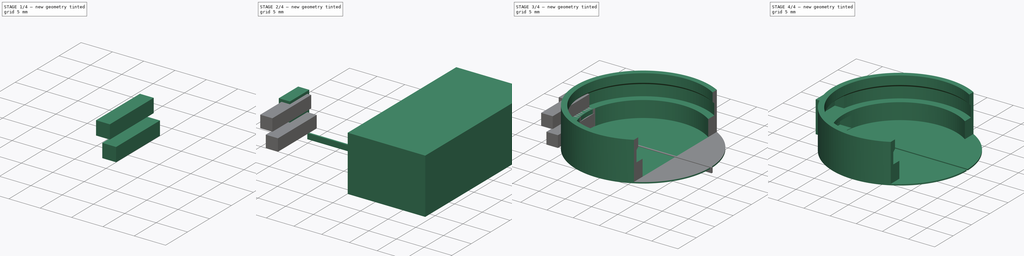
[diagram: build sequence overview — one tinted view per stage of 4, left to right]
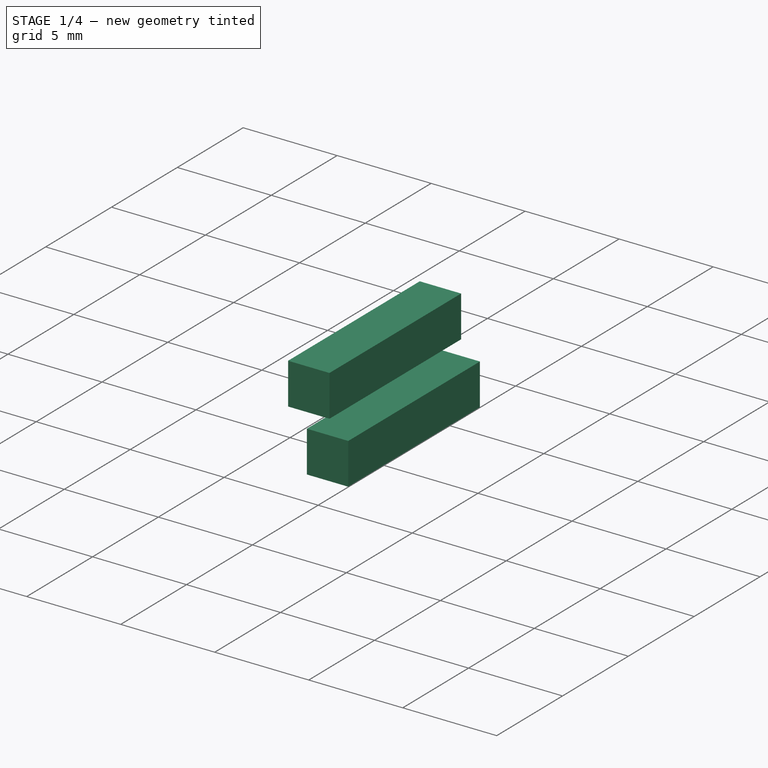
[diagram: stage 1 of 4 — iso view after this stage's code; geometry added in this stage tinted green]
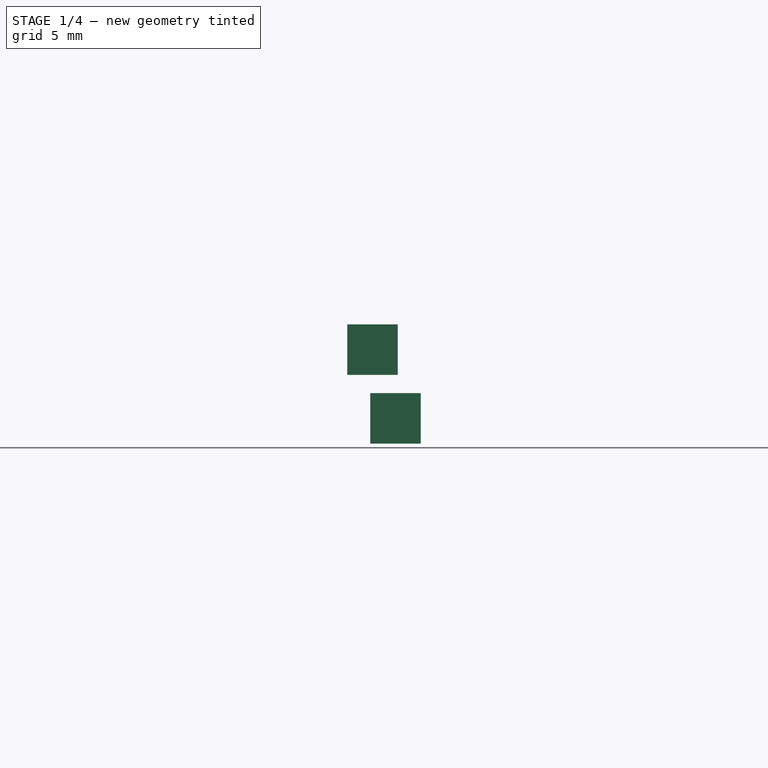
[diagram: stage 1 of 4 — front view after this stage's code; geometry added in this stage tinted green]
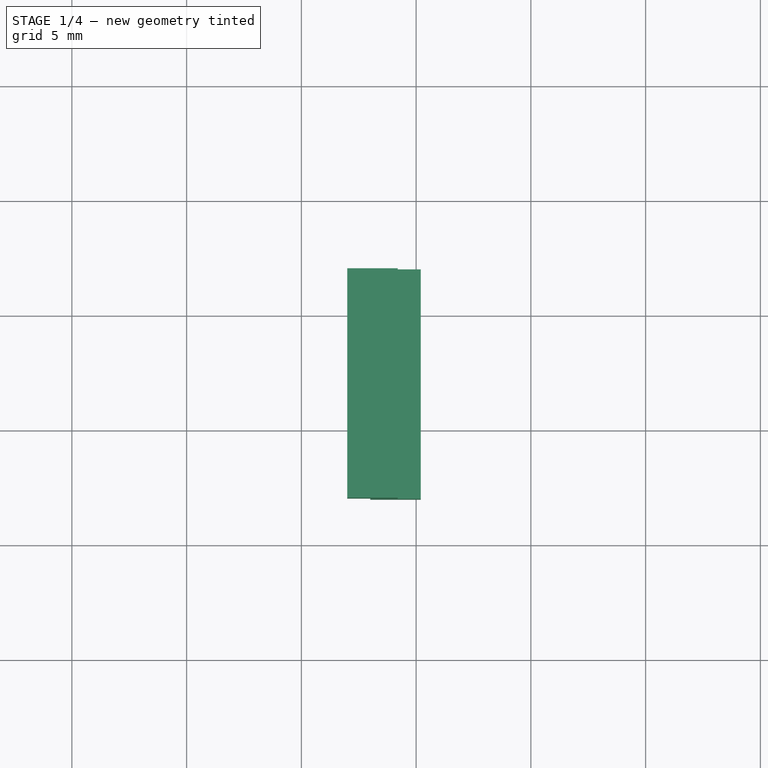
[diagram: stage 1 of 4 — top view after this stage's code; geometry added in this stage tinted green]
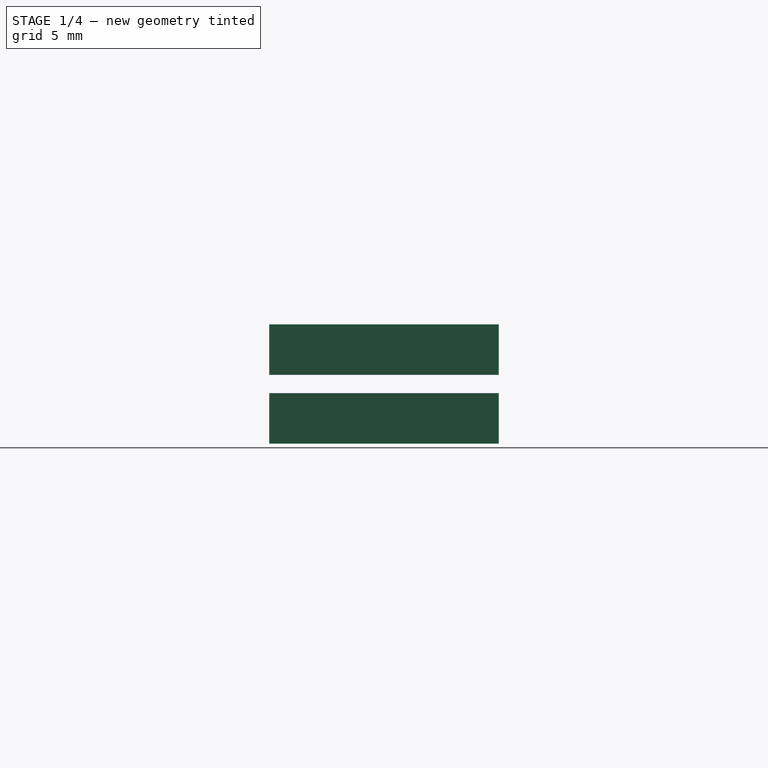
[diagram: stage 1 of 4 — right view after this stage's code; geometry added in this stage tinted green]
FCSTD DOCUMENT  (FreeCAD 0.17R13522 (Git))
Label: LIR2477_battery_holder
License: All rights reserved
LicenseURL: http://en.wikipedia.org/wiki/All_rights_reserved
objects: Part::Box×5, Part::Cut×3, Part::MultiFuse×2, Sketcher::SketchObject×1, Part::Part2DObjectPython×1, PartDesign::FeatureBase×1, PartDesign::Revolution×1, PartDesign::Body×1
note: 16 computed .brp shape members not serialized (recipe doc carries the construction recipe); baked Part::Feature solids carry a one-line shape summary decoded from their .brp

FEATURE [Part::Box] Box003  label="Terminal_hole_1"
  AttacherType = Attacher::AttachEngine3D
  Height = 2.2
  Length = 2.2
  Placement = pos=(-3,-8,0) rot=(0,0,1;0rad)
  Width = 10
FEATURE [Part::Box] Box004  label="Terminal_hole_002"
  AttacherType = Attacher::AttachEngine3D
  Height = 2.2
  Length = 2.2
  Placement = pos=(-2,-8,-3) rot=(0,0,1;0rad)
  Width = 10
FEATURE [Part::MultiFuse] Fusion001  label="Terminal_holes"
  Shapes = -> [Box003,Box004]
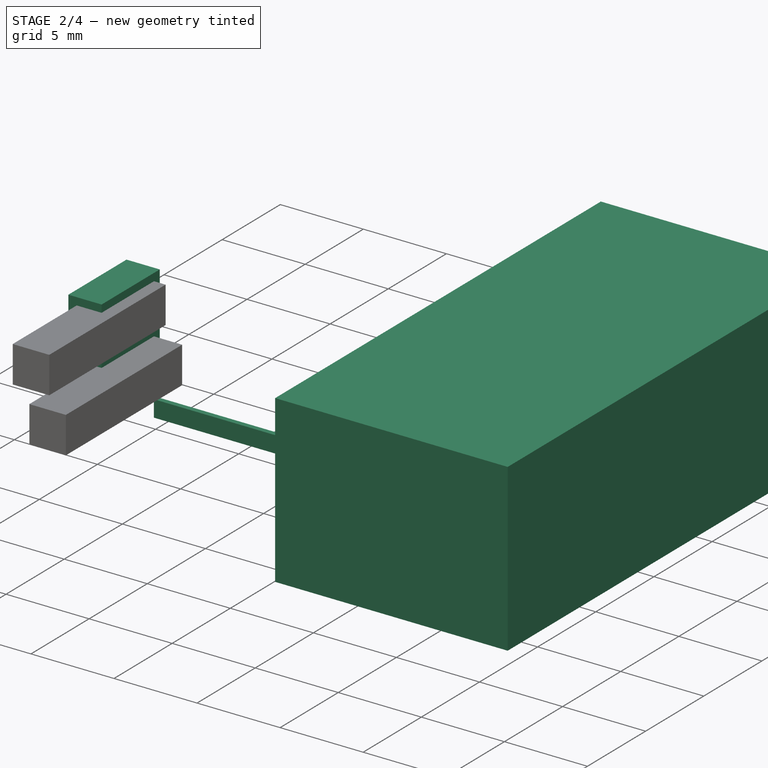
[diagram: stage 2 of 4 — iso view after this stage's code; geometry added in this stage tinted green]
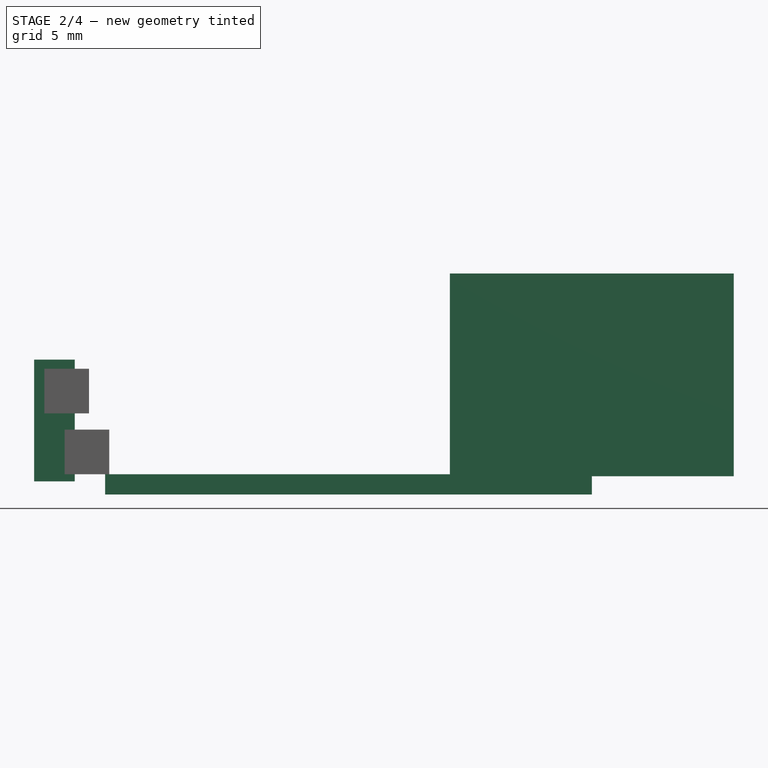
[diagram: stage 2 of 4 — front view after this stage's code; geometry added in this stage tinted green]
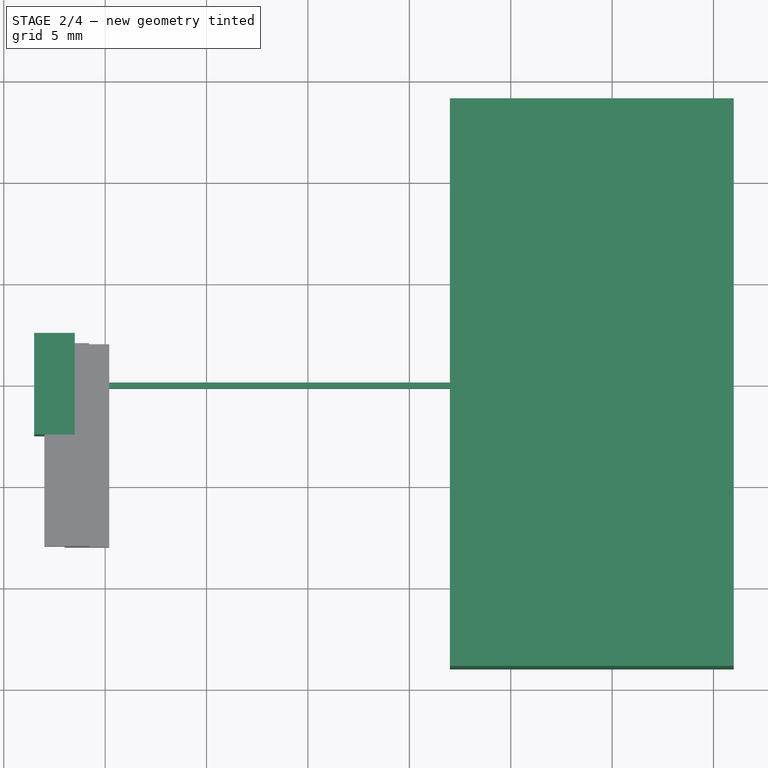
[diagram: stage 2 of 4 — top view after this stage's code; geometry added in this stage tinted green]
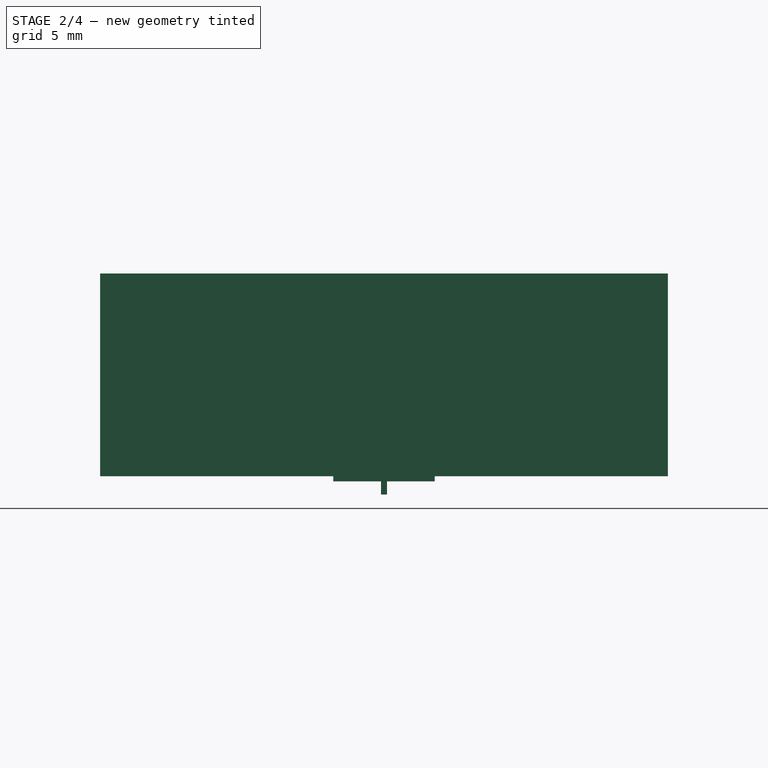
[diagram: stage 2 of 4 — right view after this stage's code; geometry added in this stage tinted green]
FEATURE [PartDesign::Body] Body
  BaseFeature = -> DWire
  Group = -> [BaseFeature,Revolution]
  Origin = -> Origin
  Tip = -> Revolution
FEATURE [Part::Box] Box  label="Cubo"
  AttacherType = Attacher::AttachEngine3D
  Height = 10
  Length = 14
  Placement = pos=(17,-14,-3.1) rot=(0,0,1;0rad)
  Width = 28
FEATURE [Part::Box] Box001  label="Cubo001"
  AttacherType = Attacher::AttachEngine3D
  Height = 1
  Length = 24
  Placement = pos=(0,-0.15,-4) rot=(0,0,1;0rad)
  Width = 0.3
FEATURE [Part::Box] Box002  label="Cubo002"
  AttacherType = Attacher::AttachEngine3D
  Height = 6
  Length = 2
  Placement = pos=(-3.5,-2.5,-3.35) rot=(0,0,1;0rad)
  Width = 5
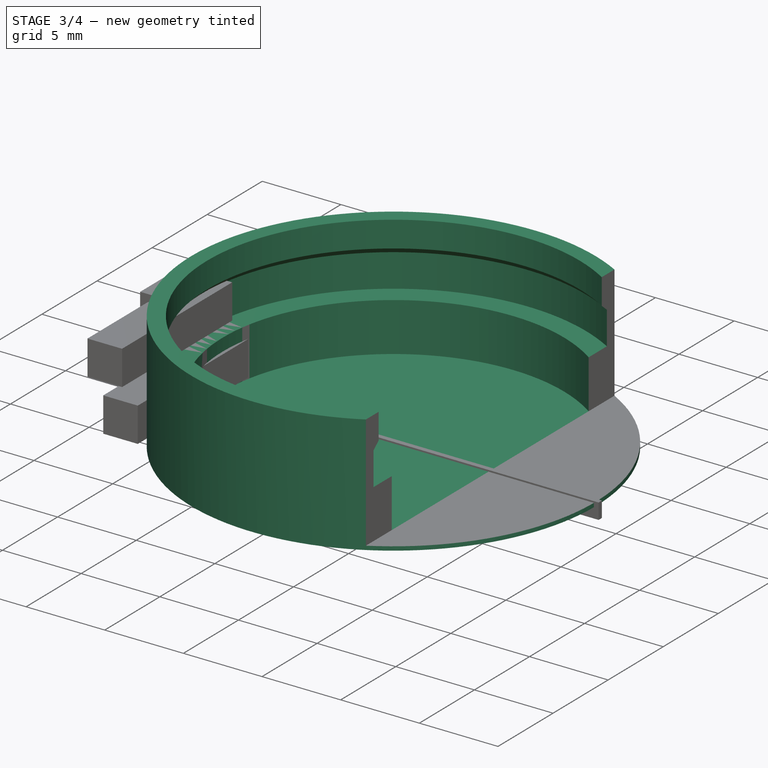
[diagram: stage 3 of 4 — iso view after this stage's code; geometry added in this stage tinted green]
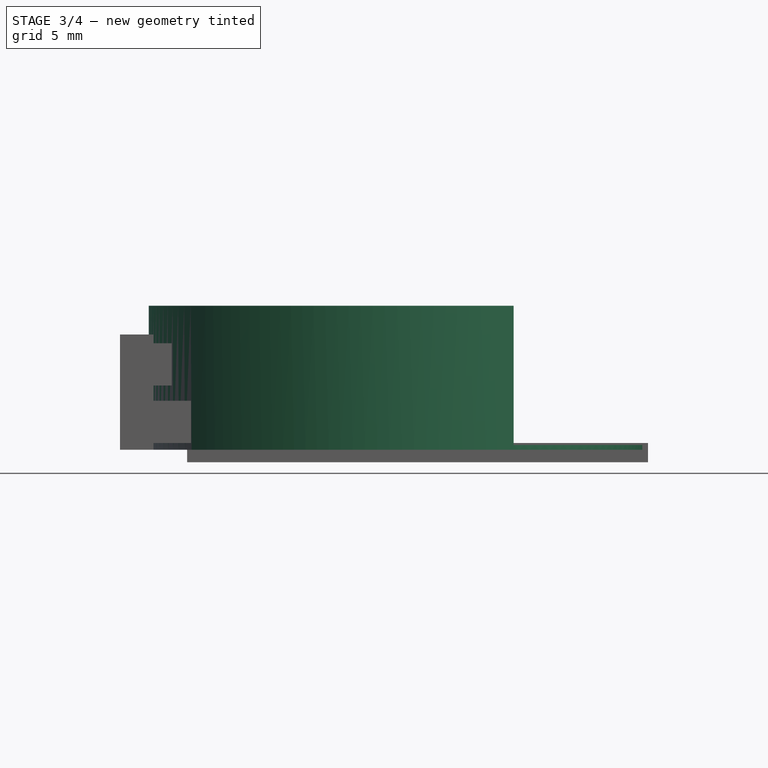
[diagram: stage 3 of 4 — front view after this stage's code; geometry added in this stage tinted green]
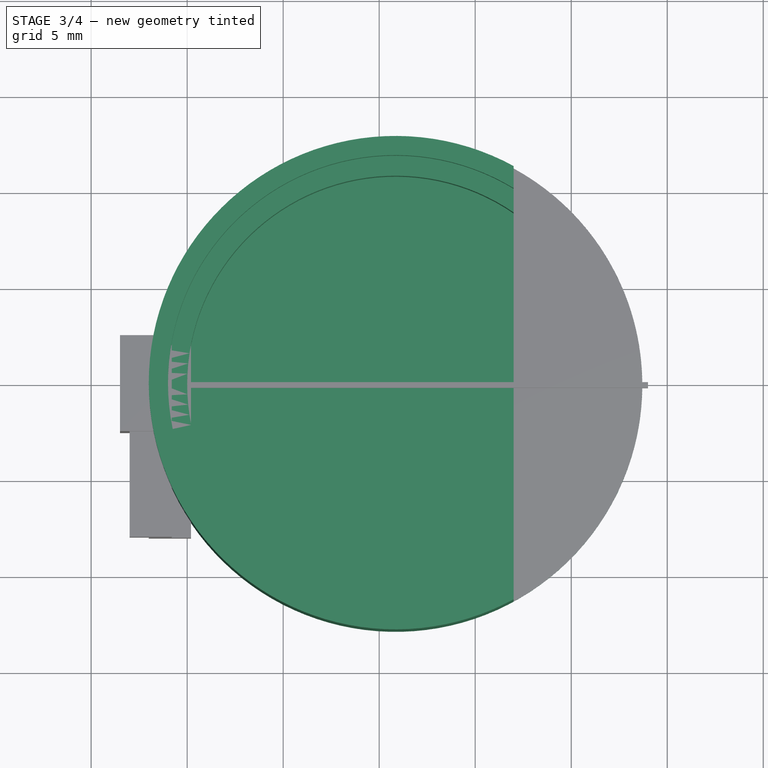
[diagram: stage 3 of 4 — top view after this stage's code; geometry added in this stage tinted green]
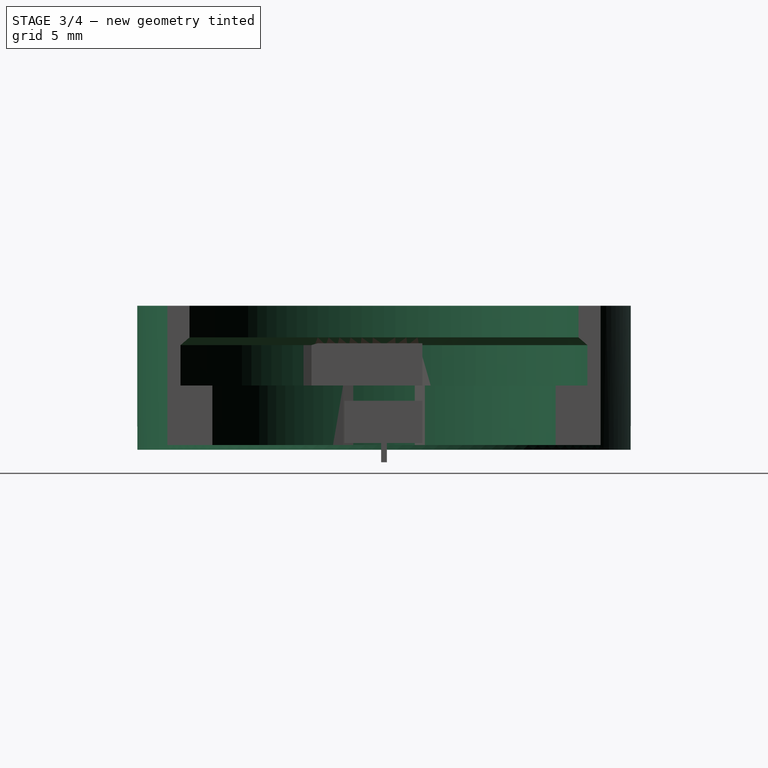
[diagram: stage 3 of 4 — right view after this stage's code; geometry added in this stage tinted green]
FEATURE [Sketcher::SketchObject] Sketch
  Placement = pos=(0,0,0) rot=(-1,0,0;4.71239rad)
  sketch-geometry (11):
    g0: LineSegment StartX=-1.4 StartY=2.1 StartZ=0 EndX=-1.4 EndY=0 EndZ=0
    g1: LineSegment StartX=-1.4 StartY=0 StartZ=0 EndX=0 EndY=0 EndZ=0
    g2: LineSegment StartX=-1 StartY=4.15 StartZ=0 EndX=-2 EndY=4.15 EndZ=0
    g3: LineSegment StartX=-2 StartY=4.15 StartZ=0 EndX=-2 EndY=-3.35 EndZ=0
    g4: LineSegment StartX=-2 StartY=-3.35 StartZ=0 EndX=0 EndY=-3.35 EndZ=0
    g5: LineSegment StartX=0 StartY=-3.35 StartZ=0 EndX=10.85 EndY=-3.35 EndZ=0
    g6: LineSegment StartX=10.85 StartY=-3.35 StartZ=0 EndX=10.85 EndY=-3.1 EndZ=0
    g7: LineSegment StartX=10.85 StartY=-3.1 StartZ=0 EndX=0 EndY=-3.1 EndZ=0
    g8: LineSegment StartX=-1 StartY=4.15 StartZ=0 EndX=-1 EndY=2.5 EndZ=0
    g9: LineSegment StartX=0 StartY=0 StartZ=0 EndX=0 EndY=-3.1 EndZ=0
    g10: LineSegment StartX=-1 StartY=2.5 StartZ=0 EndX=-1.4 EndY=2.1 EndZ=0
  constraints (32):
    c: Vertical(g0)
    c: Coincident(g1,g0)
    c: Horizontal(g1)
    c: Coincident(g1,g-1)
    c: DistanceY(g8,g2) = 1.65
    c: DistanceY(g4,g1) = 3.35
    c: Horizontal(g2)
    c: Coincident(g3,g2)
    c: Vertical(g3)
    c: Coincident(g4,g3)
    c: Horizontal(g4)
    c: DistanceY(g-1,g8) = 2.5
    c: PointOnObject(g4,g-2)
    c: Coincident(g4,g5)
    c: Horizontal(g5)
    c: Coincident(g5,g6)
    c: Vertical(g6)
    c: Coincident(g6,g7)
    c: Horizontal(g7)
    c: PointOnObject(g7,g-2)
    c: Coincident(g9,g-1)
    c: Coincident(g9,g7)
    c: Coincident(g2,g8)
    c: Coincident(g0,g10)
    c: Angle(g-1,g10) = 0.785398
    c: DistanceX(g1,g1) = 1.4
    c: DistanceX(g2,g8) = 1
    c: Coincident(g8,g10)
    c: Vertical(g8)
    c: DistanceX(g3,g0) = 0.6
    c: DistanceX(g0,g5) = 12.25
    c: DistanceY(g6,g6) = 0.25
FEATURE [Part::Part2DObjectPython] DWire  # Draft 2D object (typed FeaturePython)
  ChamferSize = 0
  Closed = true
  End = (-2,0,4.15)
  FilletRadius = 0
  Length = 41.2657
  MakeFace = true
  Points = (11) [(-2,-7.43849e-16,-3.35),(0,-7.43849e-16,-3.35),(10.85,-7.43849e-16,-3.35),(10.85,-6.88338e-16,-3.1),(0,-6.88338e-16,-3.1),(1.11022e-16,0,0),+5 more]
  Start = (-2,0,-3.35)
  Subdivisions = 0
FEATURE [PartDesign::FeatureBase] BaseFeature
  BaseFeature = -> DWire
FEATURE [PartDesign::Revolution] Revolution
  Angle = 360
  Axis = (0,0,1)
  Base = (10.85,0,-3.35)
  BaseFeature = -> BaseFeature
  Profile = -> BaseFeature [Face1]
  ReferenceAxis = -> BaseFeature [Edge3]
FEATURE [Part::Cut] Cut
  Base = -> Body
  Tool = -> Box
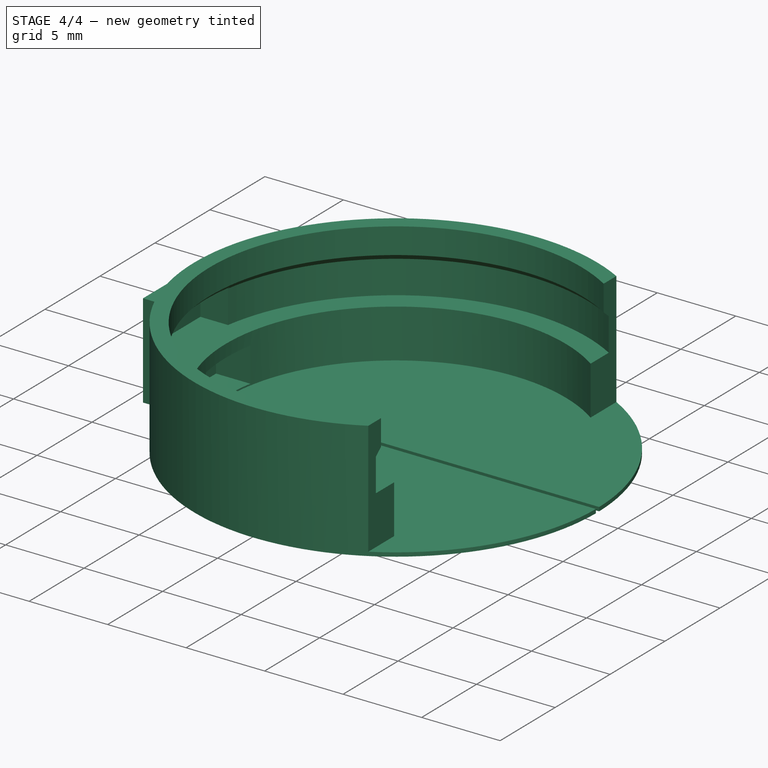
[diagram: stage 4 of 4 — iso view after this stage's code; geometry added in this stage tinted green]
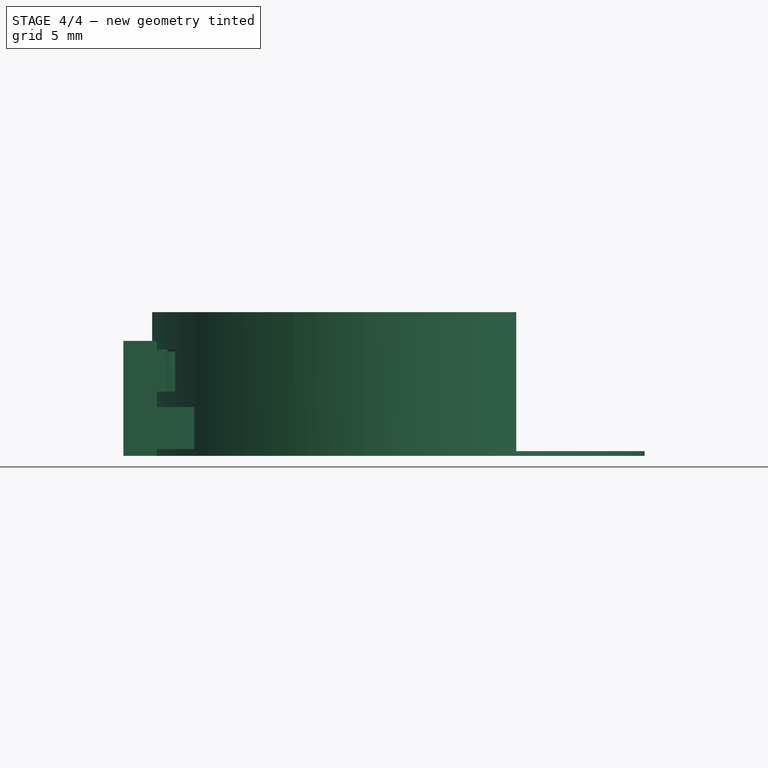
[diagram: stage 4 of 4 — front view after this stage's code; geometry added in this stage tinted green]
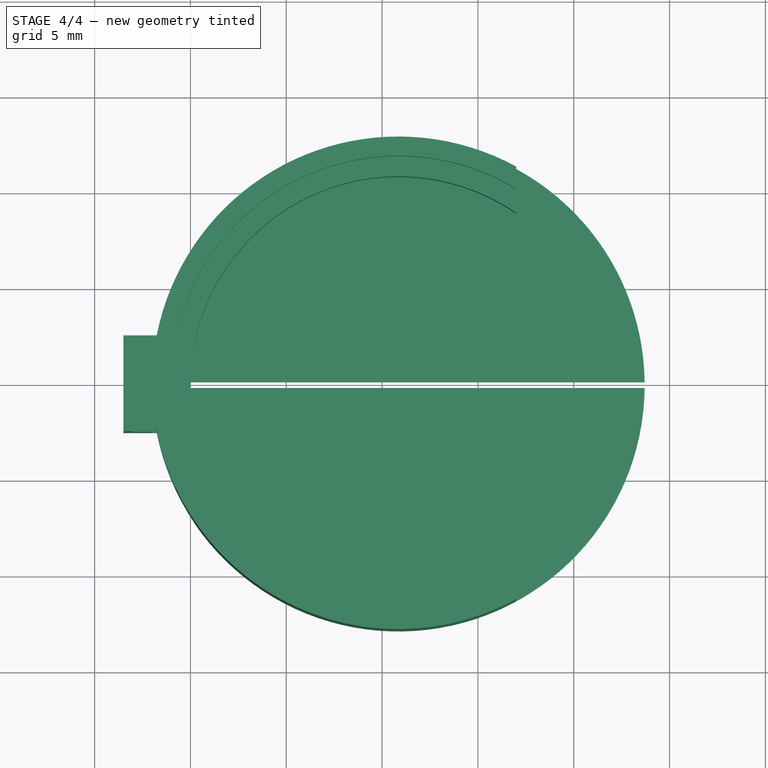
[diagram: stage 4 of 4 — top view after this stage's code; geometry added in this stage tinted green]
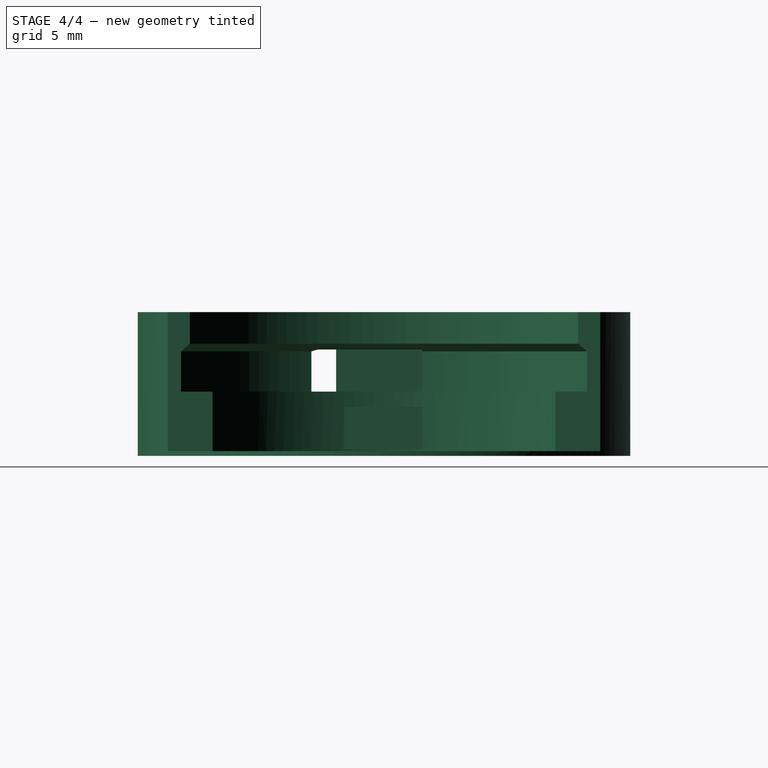
[diagram: stage 4 of 4 — right view after this stage's code; geometry added in this stage tinted green]
FEATURE [Part::Cut] Cut001
  Base = -> Cut
  Tool = -> Box001
FEATURE [Part::MultiFuse] Fusion  label="Holder"
  Shapes = -> [Cut001,Box002]
FEATURE [Part::Cut] Cut002  label="Holder_drilled"
  Base = -> Fusion
  Tool = -> Fusion001
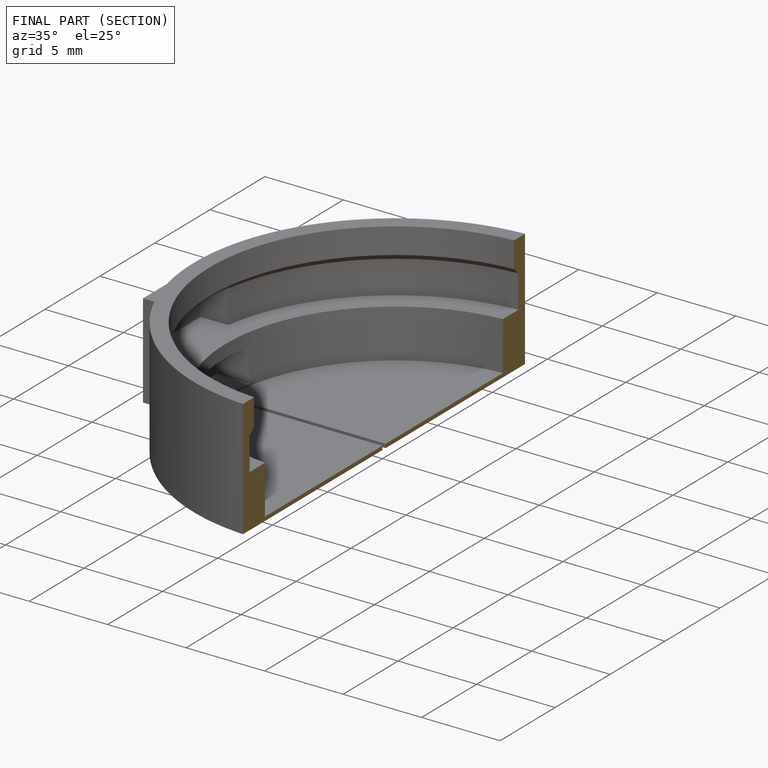
[diagram: finished part — half-section view (interior)]
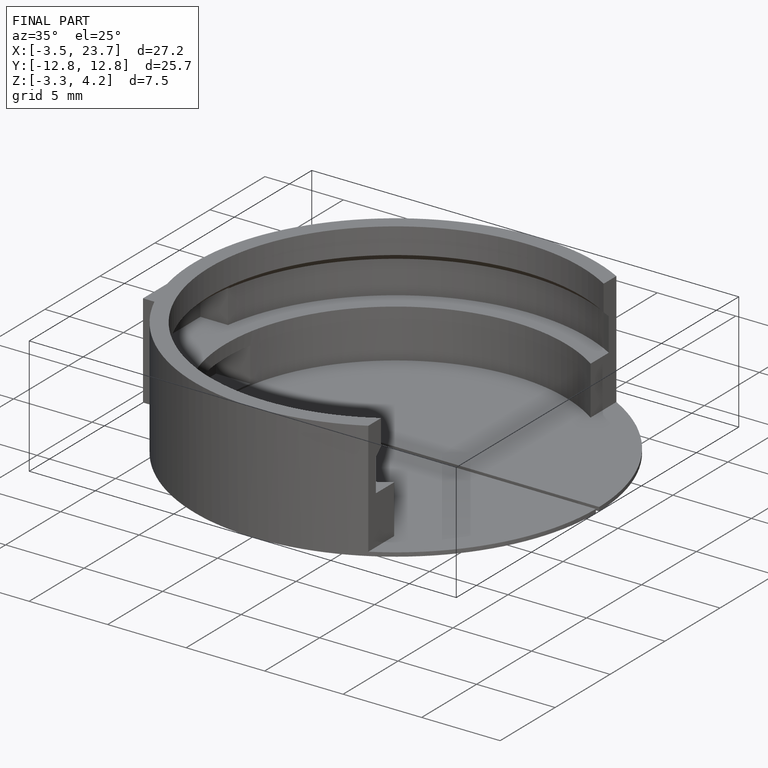
[diagram: finished part — iso view with bounding-box wireframe]
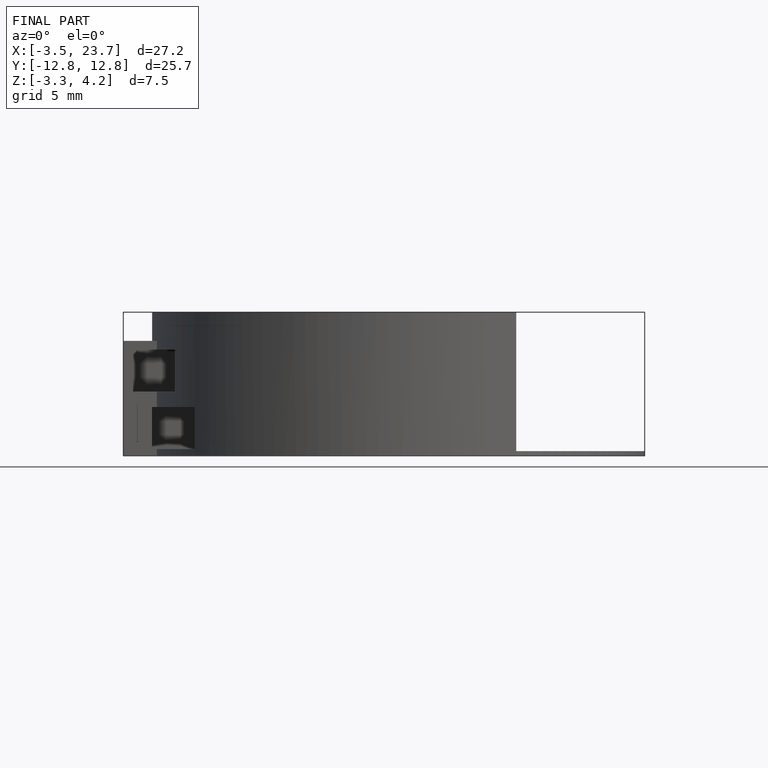
[diagram: finished part — front view with bounding-box wireframe]
